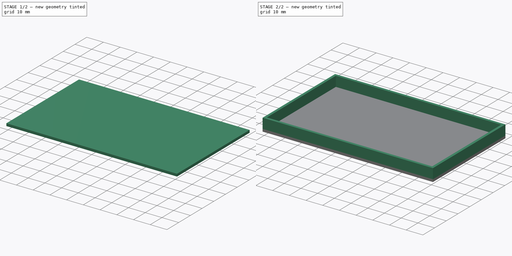
[diagram: build sequence overview — one tinted view per stage of 2, left to right]
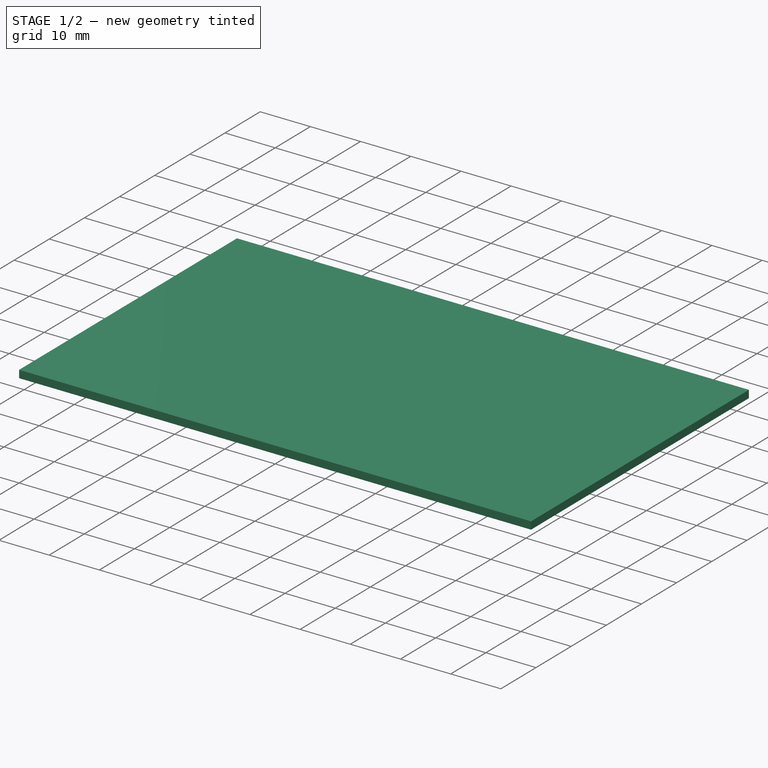
[diagram: stage 1 of 2 — iso view after this stage's code; geometry added in this stage tinted green]
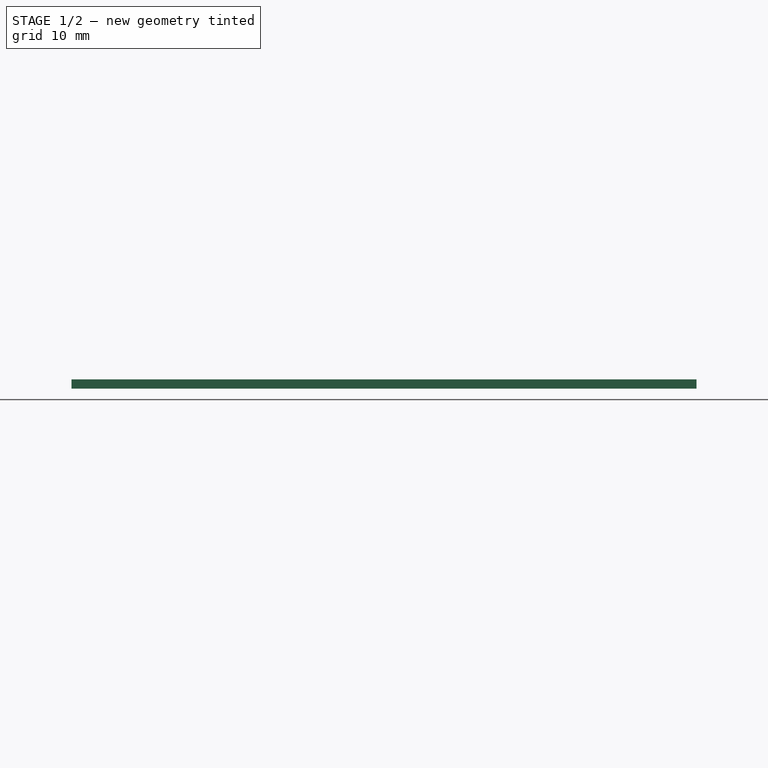
[diagram: stage 1 of 2 — front view after this stage's code; geometry added in this stage tinted green]
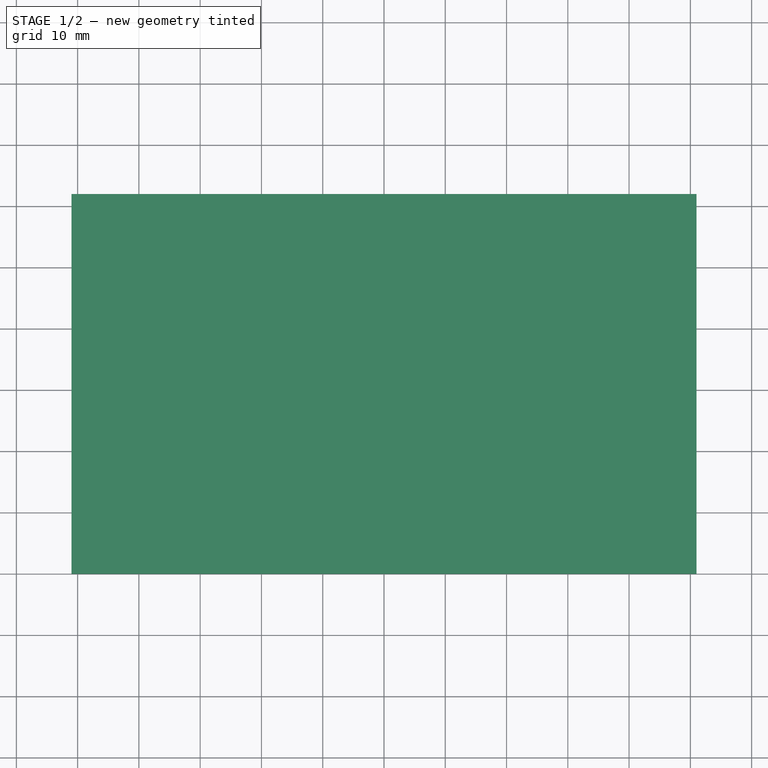
[diagram: stage 1 of 2 — top view after this stage's code; geometry added in this stage tinted green]
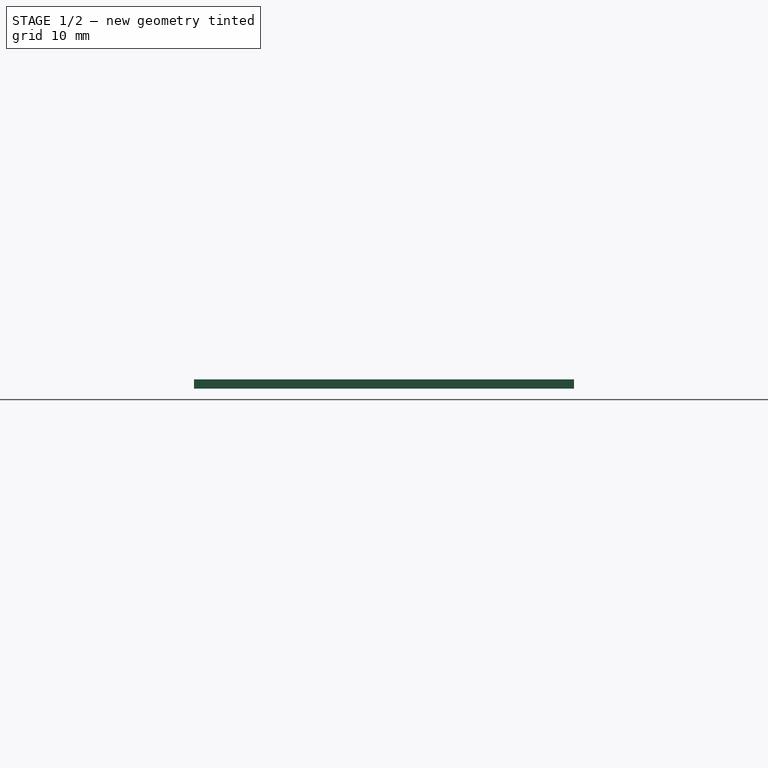
[diagram: stage 1 of 2 — right view after this stage's code; geometry added in this stage tinted green]
FCSTD DOCUMENT  (FreeCAD 0.21R33771 (Git))
Label: Box_top
License: All rights reserved
LicenseURL: http://en.wikipedia.org/wiki/All_rights_reserved
objects: Sketcher::SketchObject×2, PartDesign::Pad×2, PartDesign::Body×1
note: 7 computed .brp shape members not serialized (recipe doc carries the construction recipe); baked Part::Feature solids carry a one-line shape summary decoded from their .brp

FEATURE [Sketcher::SketchObject] Sketch  label="Top_plate"
  FullyConstrained = true
  MapMode = 5
  Support = -> [XY_Plane]
  expr: Constraints[11] = .Constraints.Top_length * 0.5
  sketch-geometry (4):
    g0: LineSegment StartX=-51 StartY=62 StartZ=0 EndX=51 EndY=62 EndZ=0
    g1: LineSegment StartX=51 StartY=62 StartZ=0 EndX=51 EndY=0 EndZ=0
    g2: LineSegment StartX=51 StartY=0 StartZ=0 EndX=-51 EndY=0 EndZ=0
    g3: LineSegment StartX=-51 StartY=0 StartZ=0 EndX=-51 EndY=62 EndZ=0
  constraints (12):
    c: Coincident(g0,g1)
    c: Coincident(g1,g2)
    c: Coincident(g2,g3)
    c: Coincident(g3,g0)
    c: Horizontal(g0)
    c: Horizontal(g2)
    c: Vertical(g1)
    c: Vertical(g3)
    c: DistanceX(g0,g0) = 102  'Top_length'
    c: DistanceY(g3,g3) = 62
    c: DistanceY(g-1,g2) = 0
    c: DistanceX(g2,g-1) = 51
FEATURE [PartDesign::Pad] Pad  label="Top_plate001"
  Direction = (0,0,1)
  Length = 1.5
  Length2 = 10
  Profile = -> Sketch
  ReferenceAxis = -> Sketch [N_Axis]
  Type = 0
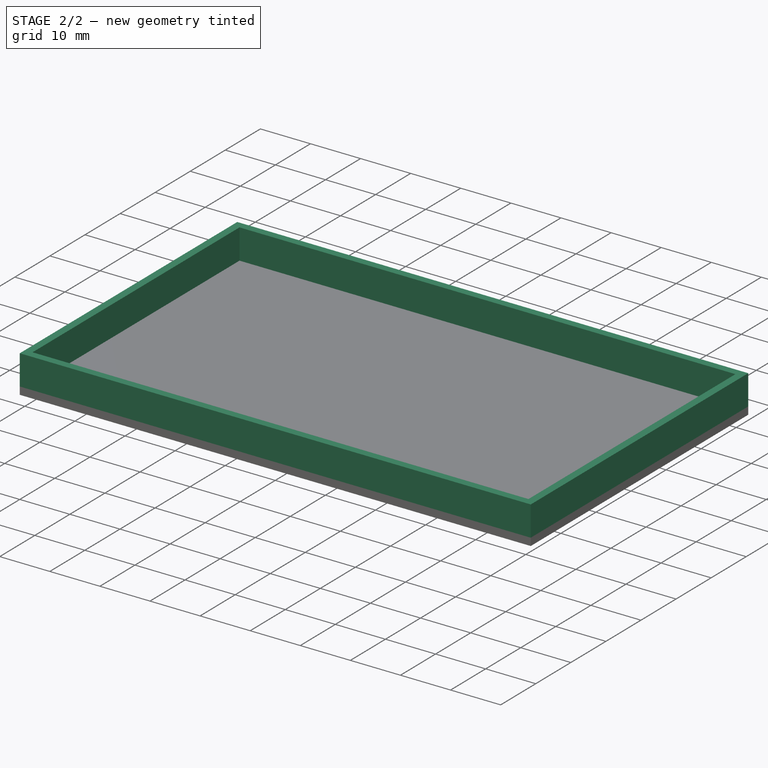
[diagram: stage 2 of 2 — iso view after this stage's code; geometry added in this stage tinted green]
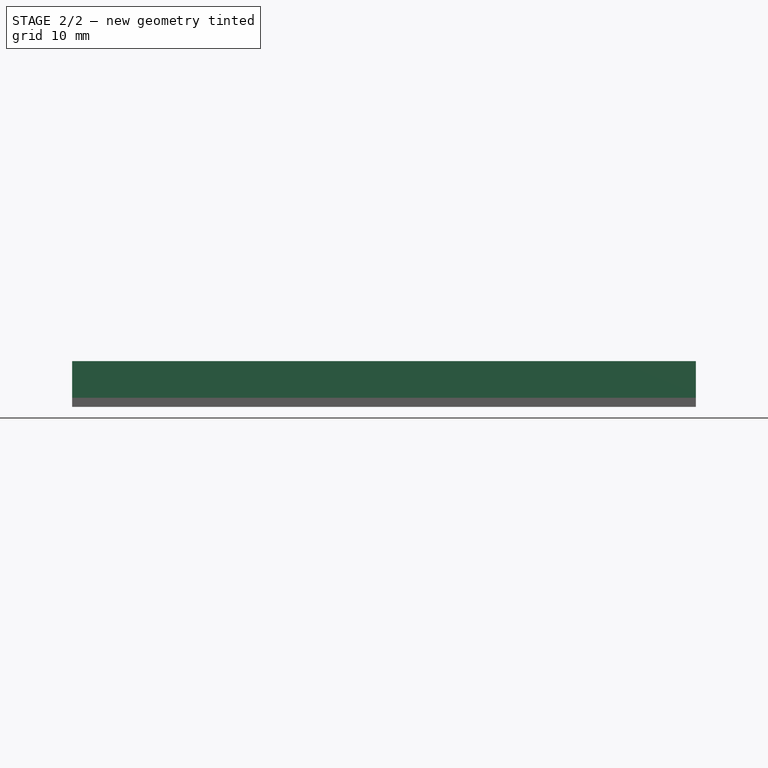
[diagram: stage 2 of 2 — front view after this stage's code; geometry added in this stage tinted green]
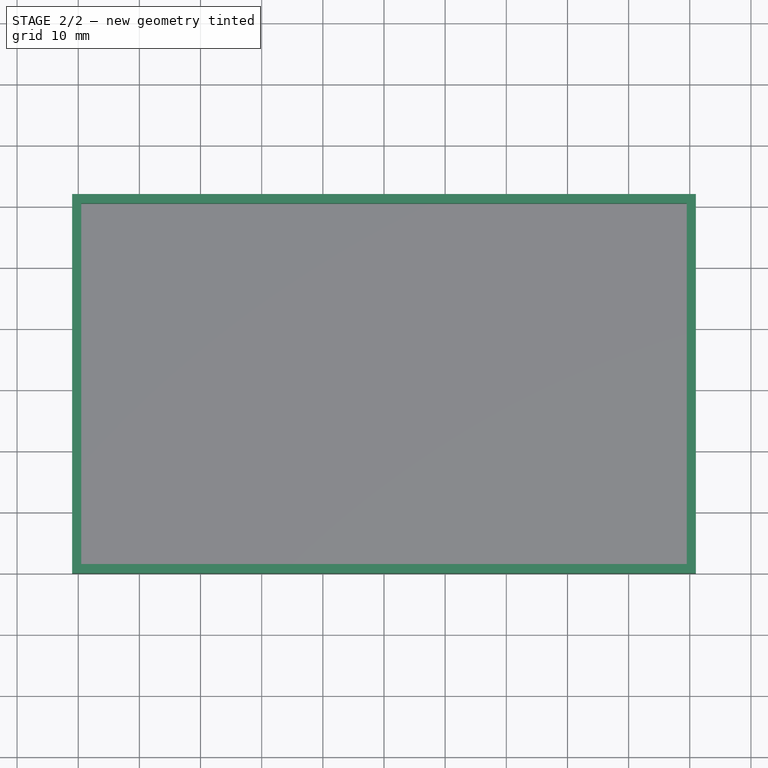
[diagram: stage 2 of 2 — top view after this stage's code; geometry added in this stage tinted green]
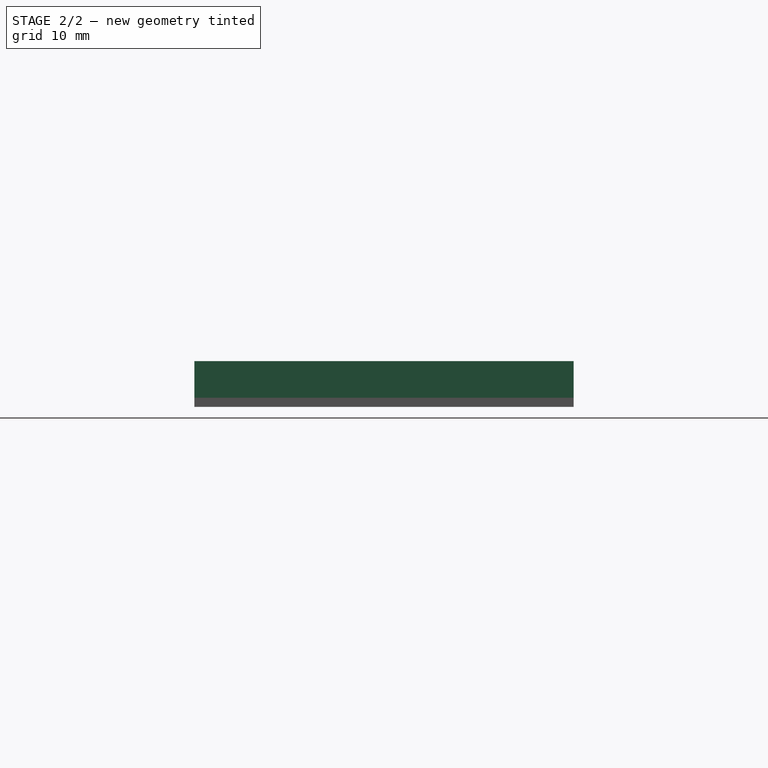
[diagram: stage 2 of 2 — right view after this stage's code; geometry added in this stage tinted green]
FEATURE [Sketcher::SketchObject] Sketch001
  FullyConstrained = true
  MapMode = 5
  Support = -> [XY_Plane]
  expr: Constraints[11] = .Constraints.Top_length * 0.5
  expr: Constraints[21] = .Constraints.Inner_length * 0.5
  sketch-geometry (8):
    g0: LineSegment StartX=-51 StartY=62 StartZ=0 EndX=51 EndY=62 EndZ=0
    g1: LineSegment StartX=51 StartY=62 StartZ=0 EndX=51 EndY=0 EndZ=0
    g2: LineSegment StartX=51 StartY=0 StartZ=0 EndX=-51 EndY=0 EndZ=0
    g3: LineSegment StartX=-51 StartY=0 StartZ=0 EndX=-51 EndY=62 EndZ=0
    g4: LineSegment StartX=-49.5 StartY=60.5 StartZ=0 EndX=49.5 EndY=60.5 EndZ=0
    g5: LineSegment StartX=49.5 StartY=60.5 StartZ=0 EndX=49.5 EndY=1.5 EndZ=0
    g6: LineSegment StartX=49.5 StartY=1.5 StartZ=0 EndX=-49.5 EndY=1.5 EndZ=0
    g7: LineSegment StartX=-49.5 StartY=1.5 StartZ=0 EndX=-49.5 EndY=60.5 EndZ=0
  constraints (24):
    c: Coincident(g0,g1)
    c: Coincident(g1,g2)
    c: Coincident(g2,g3)
    c: Coincident(g3,g0)
    c: Horizontal(g0)
    c: Horizontal(g2)
    c: Vertical(g1)
    c: Vertical(g3)
    c: DistanceX(g0,g0) = 102  'Top_length'
    c: DistanceY(g3,g3) = 62
    c: DistanceY(g2,g-1) = 0
    c: DistanceX(g2,g-1) = 51
    c: Coincident(g4,g5)
    c: Coincident(g5,g6)
    c: Coincident(g6,g7)
    c: Coincident(g7,g4)
    c: Horizontal(g4)
    c: Horizontal(g6)
    c: Vertical(g5)
    c: Vertical(g7)
    c: DistanceX(g4,g4) = 99  'Inner_length'
    c: DistanceX(g6,g-1) = 49.5
    c: DistanceY(g7,g7) = 59
    c: DistanceY(g-1,g6) = 1.5
FEATURE [PartDesign::Pad] Pad001  label="Top_sides"
  BaseFeature = -> Pad
  Direction = (0,0,1)
  Length = 7.5
  Length2 = 10
  Profile = -> Sketch001
  ReferenceAxis = -> Sketch001 [N_Axis]
  Type = 0
FEATURE [PartDesign::Body] Body
  Group = -> [Sketch,Pad,Sketch001,Pad001]
  Origin = -> Origin
  Tip = -> Pad001
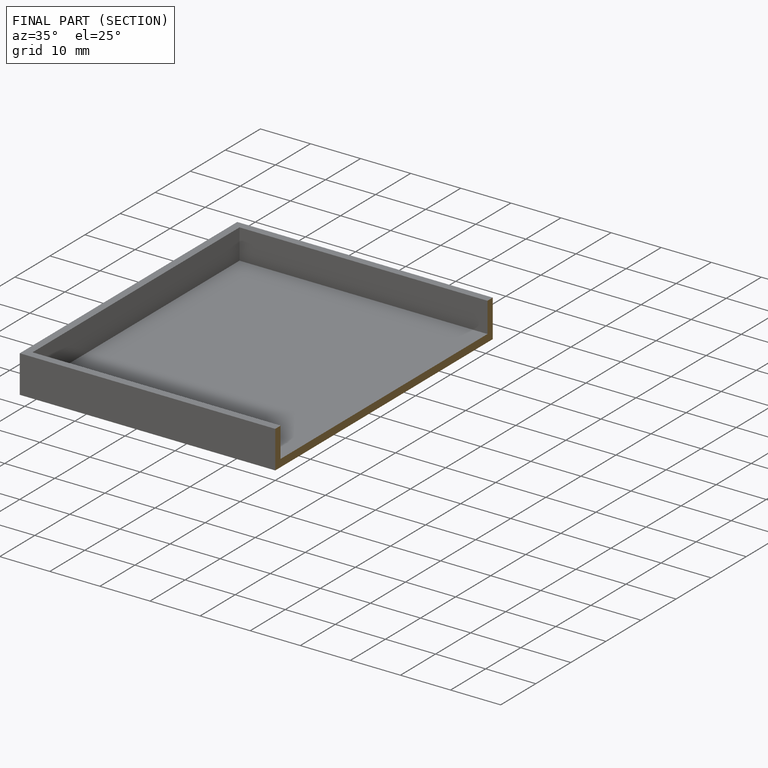
[diagram: finished part — half-section view (interior)]
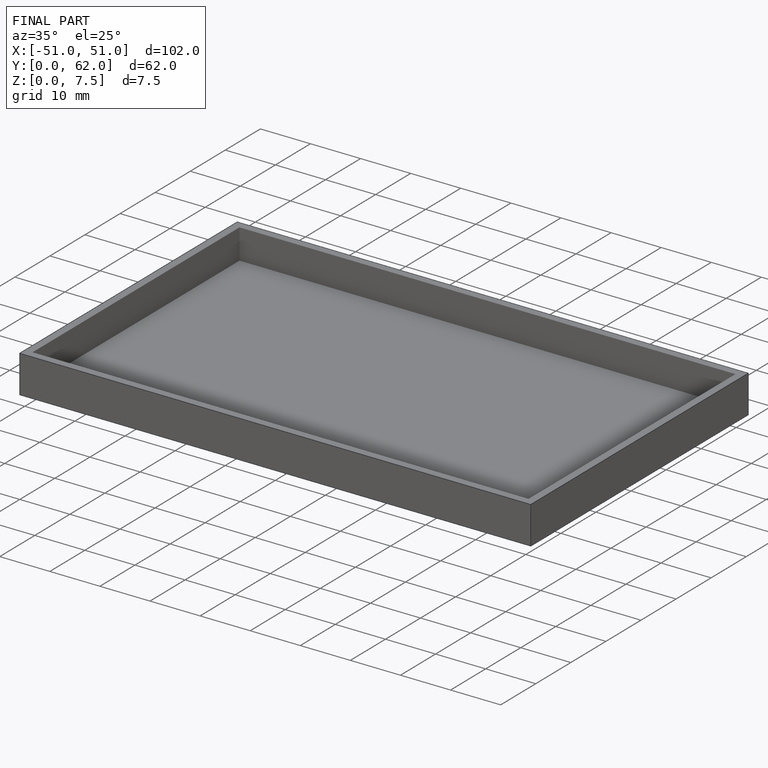
[diagram: finished part — iso view with bounding-box wireframe]
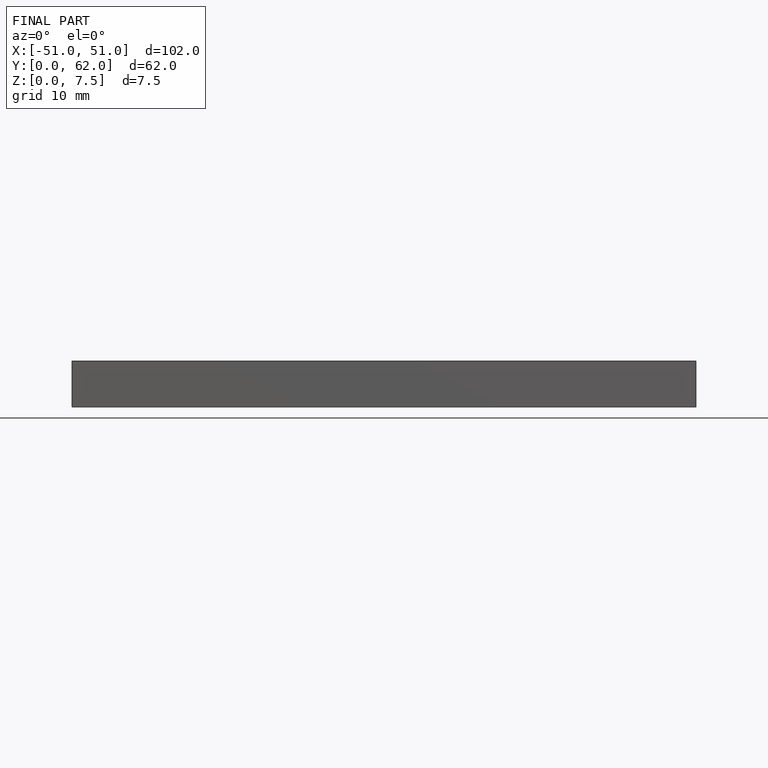
[diagram: finished part — front view with bounding-box wireframe]
